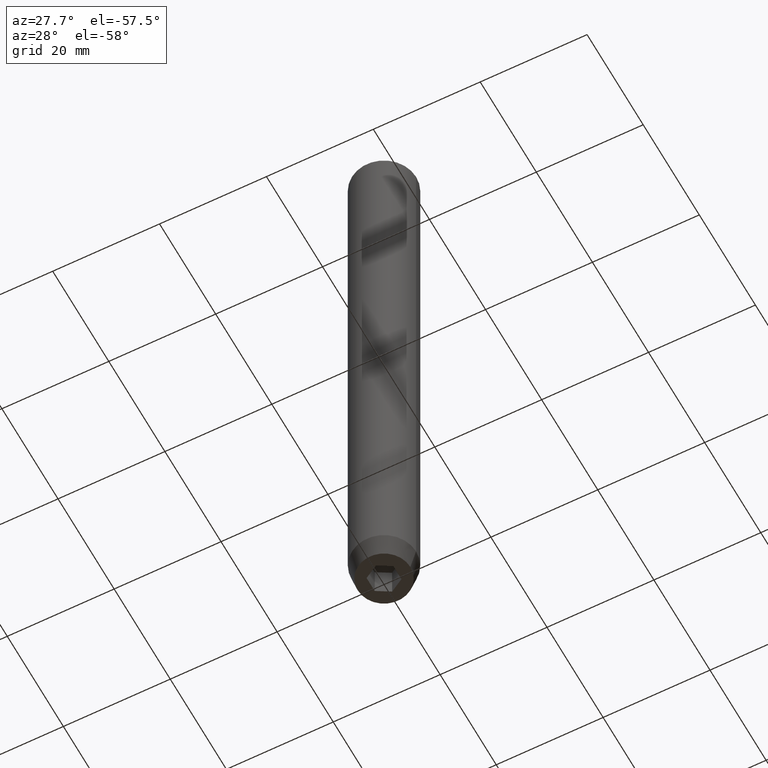
[diagram: clean part render]
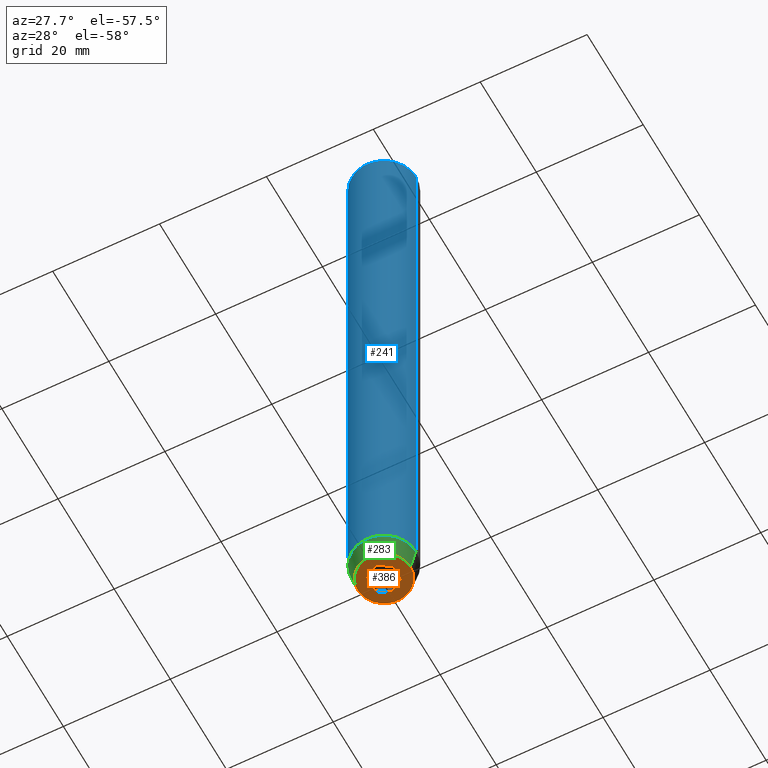
[diagram: same view with three faces highlighted in distinct colors, each labeled with its STEP entity id]
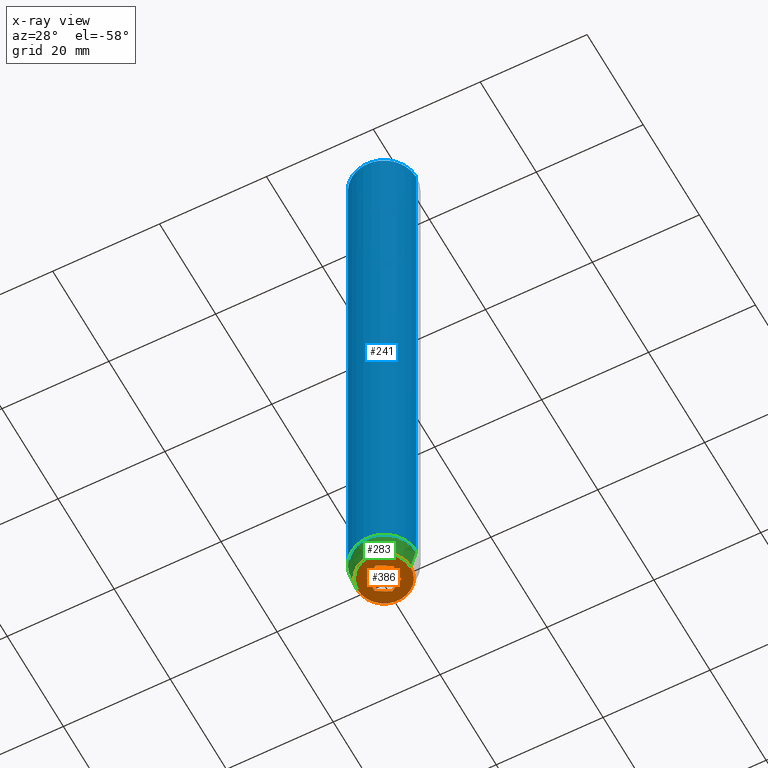
[diagram: x-ray of the same camera — body ghosted, the three highlighted faces saturated]
A machine part, auxiliary view with three faces highlighted in distinct colors.
The next image is the same camera in x-ray (body ghosted, the three faces saturated) — at least one of them is partly hidden behind the body in this view.
Their STEP definitions:

[orange] entity #386 — the highlighted planar face has unit normal (0, 0, -1).
#3 = VECTOR ( 'NONE', #385, 1000.000000000000000 ) ;
#13 = DIRECTION ( 'NONE',  ( -0.8660254037844387076, -0.5000000000000001110, 0.000000000000000000 ) ) ;
#49 = EDGE_LOOP ( 'NONE', ( #256, #211 ) ) ;
#54 = ORIENTED_EDGE ( 'NONE', *, *, #328, .F. ) ;
#83 = VERTEX_POINT ( 'NONE', #470 ) ;
#89 = CARTESIAN_POINT ( 'NONE',  ( -1.249999999999999334, -2.165063509461096825, -120.0000000000000000 ) ) ;
#98 = DIRECTION ( 'NONE',  ( 1.000000000000000000, 0.000000000000000000, 0.000000000000000000 ) ) ;
#100 = VERTEX_POINT ( 'NONE', #309 ) ;
#106 = ORIENTED_EDGE ( 'NONE', *, *, #586, .F. ) ;
#107 = AXIS2_PLACEMENT_3D ( 'NONE', #633, #440, #214 ) ;
#112 = FACE_BOUND ( 'NONE', #295, .T. ) ;
#114 = LINE ( 'NONE', #447, #314 ) ;
#136 = LINE ( 'NONE', #89, #433 ) ;
#145 = FACE_OUTER_BOUND ( 'NONE', #49, .T. ) ;
#174 = AXIS2_PLACEMENT_3D ( 'NONE', #637, #349, #98 ) ;
#184 = CARTESIAN_POINT ( 'NONE',  ( -2.499999999999999556, 1.443375672974064994, -120.0000000000000000 ) ) ;
#190 = CARTESIAN_POINT ( 'NONE',  ( 2.499999999999999556, 0.000000000000000000, -120.0000000000000000 ) ) ;
#192 = CARTESIAN_POINT ( 'NONE',  ( 1.250000000000000222, 2.165063509461097269, -120.0000000000000000 ) ) ;
#202 = DIRECTION ( 'NONE',  ( 0.8660254037844385966, -0.4999999999999999445, 0.000000000000000000 ) ) ;
#205 = CIRCLE ( 'NONE', #107, 4.928203230275505220 ) ;
#211 = ORIENTED_EDGE ( 'NONE', *, *, #348, .F. ) ;
#214 = DIRECTION ( 'NONE',  ( 1.000000000000000000, 0.000000000000000000, 0.000000000000000000 ) ) ;
#227 = LINE ( 'NONE', #190, #3 ) ;
#235 = EDGE_CURVE ( 'NONE', #499, #394, #384, .T. ) ;
#244 = EDGE_CURVE ( 'NONE', #100, #626, #136, .T. ) ;
#249 = CARTESIAN_POINT ( 'NONE',  ( 0.000000000000000000, 4.928203230275505220, -120.0000000000000000 ) ) ;
#254 = CARTESIAN_POINT ( 'NONE',  ( -2.500000000000000000, 7.511572993685795156E-16, -120.0000000000000000 ) ) ;
#256 = ORIENTED_EDGE ( 'NONE', *, *, #308, .F. ) ;
#287 = VECTOR ( 'NONE', #492, 1000.000000000000000 ) ;
#290 = EDGE_CURVE ( 'NONE', #599, #100, #114, .T. ) ;
#295 = EDGE_LOOP ( 'NONE', ( #334, #54, #491, #575, #106, #619 ) ) ;
#302 = LINE ( 'NONE', #254, #287 ) ;
#308 = EDGE_CURVE ( 'NONE', #83, #406, #561, .T. ) ;
#309 = CARTESIAN_POINT ( 'NONE',  ( 6.505213034913026604E-16, -2.886751345948127767, -120.0000000000000000 ) ) ;
#311 = CARTESIAN_POINT ( 'NONE',  ( 0.000000000000000000, 2.886751345948129543, -120.0000000000000000 ) ) ;
#313 = PLANE ( 'NONE',  #366 ) ;
#314 = VECTOR ( 'NONE', #13, 999.9999999999998863 ) ;
#328 = EDGE_CURVE ( 'NONE', #626, #499, #302, .T. ) ;
#334 = ORIENTED_EDGE ( 'NONE', *, *, #235, .F. ) ;
#342 = DIRECTION ( 'NONE',  ( 0.000000000000000000, 0.000000000000000000, -1.000000000000000000 ) ) ;
#347 = VECTOR ( 'NONE', #202, 1000.000000000000114 ) ;
#348 = EDGE_CURVE ( 'NONE', #406, #83, #205, .T. ) ;
#349 = DIRECTION ( 'NONE',  ( -0.000000000000000000, -0.000000000000000000, 1.000000000000000000 ) ) ;
#366 = AXIS2_PLACEMENT_3D ( 'NONE', #249, #342, #606 ) ;
#379 = CARTESIAN_POINT ( 'NONE',  ( -1.250000000000000000, 2.165063509461097269, -120.0000000000000000 ) ) ;
#384 = LINE ( 'NONE', #379, #600 ) ;
#385 = DIRECTION ( 'NONE',  ( 0.000000000000000000, -1.000000000000000000, 0.000000000000000000 ) ) ;
#386 = ADVANCED_FACE ( 'NONE', ( #112, #145 ), #313, .T. ) ;
#390 = LINE ( 'NONE', #192, #347 ) ;
#394 = VERTEX_POINT ( 'NONE', #311 ) ;
#406 = VERTEX_POINT ( 'NONE', #557 ) ;
#433 = VECTOR ( 'NONE', #438, 1000.000000000000114 ) ;
#438 = DIRECTION ( 'NONE',  ( -0.8660254037844387076, 0.4999999999999997780, 0.000000000000000000 ) ) ;
#440 = DIRECTION ( 'NONE',  ( -0.000000000000000000, -0.000000000000000000, 1.000000000000000000 ) ) ;
#447 = CARTESIAN_POINT ( 'NONE',  ( 1.249999999999999778, -2.165063509461096380, -120.0000000000000000 ) ) ;
#470 = CARTESIAN_POINT ( 'NONE',  ( 4.928203230275505220, 0.000000000000000000, -120.0000000000000000 ) ) ;
#491 = ORIENTED_EDGE ( 'NONE', *, *, #244, .F. ) ;
#492 = DIRECTION ( 'NONE',  ( 3.004629197474318063E-16, 1.000000000000000000, 0.000000000000000000 ) ) ;
#499 = VERTEX_POINT ( 'NONE', #184 ) ;
#526 = CARTESIAN_POINT ( 'NONE',  ( 2.499999999999999556, 1.443375672974065216, -120.0000000000000000 ) ) ;
#557 = CARTESIAN_POINT ( 'NONE',  ( -4.928203230275505220, 6.691594553194331608E-16, -120.0000000000000000 ) ) ;
#561 = CIRCLE ( 'NONE', #174, 4.928203230275505220 ) ;
#575 = ORIENTED_EDGE ( 'NONE', *, *, #290, .F. ) ;
#581 = DIRECTION ( 'NONE',  ( 0.8660254037844385966, 0.4999999999999998890, 0.000000000000000000 ) ) ;
#582 = CARTESIAN_POINT ( 'NONE',  ( 2.499999999999999556, -1.443375672974064550, -120.0000000000000000 ) ) ;
#586 = EDGE_CURVE ( 'NONE', #595, #599, #227, .T. ) ;
#595 = VERTEX_POINT ( 'NONE', #526 ) ;
#599 = VERTEX_POINT ( 'NONE', #582 ) ;
#600 = VECTOR ( 'NONE', #581, 1000.000000000000227 ) ;
#606 = DIRECTION ( 'NONE',  ( -1.000000000000000000, 0.000000000000000000, -0.000000000000000000 ) ) ;
#619 = ORIENTED_EDGE ( 'NONE', *, *, #639, .F. ) ;
#626 = VERTEX_POINT ( 'NONE', #630 ) ;
#630 = CARTESIAN_POINT ( 'NONE',  ( -2.500000000000000444, -1.443375672974064106, -120.0000000000000000 ) ) ;
#633 = CARTESIAN_POINT ( 'NONE',  ( 0.000000000000000000, 0.000000000000000000, -120.0000000000000000 ) ) ;
#637 = CARTESIAN_POINT ( 'NONE',  ( 0.000000000000000000, 0.000000000000000000, -120.0000000000000000 ) ) ;
#639 = EDGE_CURVE ( 'NONE', #394, #595, #390, .T. ) ;

[blue] entity #241 — the highlighted cylindrical surface (edge-blend (fillet) strip) has radius 6 mm, axis along (-0, -0, 1).
#22 = CARTESIAN_POINT ( 'NONE',  ( 6.000000000000000000, 0.000000000000000000, -115.9999999999999858 ) ) ;
#25 = EDGE_CURVE ( 'NONE', #341, #99, #117, .T. ) ;
#31 = AXIS2_PLACEMENT_3D ( 'NONE', #65, #368, #615 ) ;
#45 = ORIENTED_EDGE ( 'NONE', *, *, #494, .T. ) ;
#47 = DIRECTION ( 'NONE',  ( 1.000000000000000000, 0.000000000000000000, 0.000000000000000000 ) ) ;
#65 = CARTESIAN_POINT ( 'NONE',  ( 0.000000000000000000, 0.000000000000000000, -115.9999999999999858 ) ) ;
#67 = ORIENTED_EDGE ( 'NONE', *, *, #262, .T. ) ;
#77 = DIRECTION ( 'NONE',  ( -0.000000000000000000, -0.000000000000000000, 1.000000000000000000 ) ) ;
#86 = VECTOR ( 'NONE', #466, 1000.000000000000000 ) ;
#99 = VERTEX_POINT ( 'NONE', #22 ) ;
#117 = CIRCLE ( 'NONE', #31, 6.000000000000000000 ) ;
#149 = CARTESIAN_POINT ( 'NONE',  ( 0.000000000000000000, 0.000000000000000000, -0.4999999999999752975 ) ) ;
#155 = VERTEX_POINT ( 'NONE', #329 ) ;
#182 = DIRECTION ( 'NONE',  ( 1.000000000000000000, 0.000000000000000000, 0.000000000000000000 ) ) ;
#196 = CARTESIAN_POINT ( 'NONE',  ( -6.000000000000000000, 7.347880794884119736E-16, -115.9999999999999858 ) ) ;
#207 = ORIENTED_EDGE ( 'NONE', *, *, #487, .F. ) ;
#219 = EDGE_LOOP ( 'NONE', ( #207, #260, #45, #67 ) ) ;
#224 = DIRECTION ( 'NONE',  ( -0.000000000000000000, -0.000000000000000000, 1.000000000000000000 ) ) ;
#241 = ADVANCED_FACE ( 'NONE', ( #532 ), #522, .T. ) ;
#260 = ORIENTED_EDGE ( 'NONE', *, *, #25, .T. ) ;
#262 = EDGE_CURVE ( 'NONE', #377, #155, #408, .T. ) ;
#276 = CARTESIAN_POINT ( 'NONE',  ( 6.000000000000000000, 0.000000000000000000, 0.000000000000000000 ) ) ;
#282 = CARTESIAN_POINT ( 'NONE',  ( 0.000000000000000000, 0.000000000000000000, 0.000000000000000000 ) ) ;
#299 = DIRECTION ( 'NONE',  ( 0.000000000000000000, 0.000000000000000000, -1.000000000000000000 ) ) ;
#326 = LINE ( 'NONE', #517, #357 ) ;
#329 = CARTESIAN_POINT ( 'NONE',  ( -6.000000000000000000, 7.347880794884119736E-16, -0.4999999999999752975 ) ) ;
#341 = VERTEX_POINT ( 'NONE', #196 ) ;
#357 = VECTOR ( 'NONE', #224, 1000.000000000000000 ) ;
#368 = DIRECTION ( 'NONE',  ( -0.000000000000000000, -0.000000000000000000, 1.000000000000000000 ) ) ;
#377 = VERTEX_POINT ( 'NONE', #401 ) ;
#400 = AXIS2_PLACEMENT_3D ( 'NONE', #149, #299, #47 ) ;
#401 = CARTESIAN_POINT ( 'NONE',  ( 6.000000000000000000, 0.000000000000000000, -0.4999999999999752975 ) ) ;
#408 = CIRCLE ( 'NONE', #400, 6.000000000000000000 ) ;
#430 = LINE ( 'NONE', #276, #86 ) ;
#466 = DIRECTION ( 'NONE',  ( -0.000000000000000000, -0.000000000000000000, 1.000000000000000000 ) ) ;
#487 = EDGE_CURVE ( 'NONE', #341, #155, #326, .T. ) ;
#490 = AXIS2_PLACEMENT_3D ( 'NONE', #282, #77, #182 ) ;
#494 = EDGE_CURVE ( 'NONE', #99, #377, #430, .T. ) ;
#517 = CARTESIAN_POINT ( 'NONE',  ( -6.000000000000000000, 7.347880794884119736E-16, 0.000000000000000000 ) ) ;
#522 = CYLINDRICAL_SURFACE ( 'NONE', #490, 6.000000000000000000 ) ;
#532 = FACE_OUTER_BOUND ( 'NONE', #219, .T. ) ;
#615 = DIRECTION ( 'NONE',  ( 1.000000000000000000, 0.000000000000000000, 0.000000000000000000 ) ) ;

[green] entity #283 — the highlighted conical surface has half-angle 15 deg.
#22 = CARTESIAN_POINT ( 'NONE',  ( 6.000000000000000000, 0.000000000000000000, -115.9999999999999858 ) ) ;
#23 = ORIENTED_EDGE ( 'NONE', *, *, #554, .T. ) ;
#25 = EDGE_CURVE ( 'NONE', #341, #99, #117, .T. ) ;
#31 = AXIS2_PLACEMENT_3D ( 'NONE', #65, #368, #615 ) ;
#35 = CARTESIAN_POINT ( 'NONE',  ( -6.000000000000000000, 7.347880794884119736E-16, -115.9999999999999858 ) ) ;
#39 = DIRECTION ( 'NONE',  ( -0.2588190451025214611, 3.169619151431773569E-17, 0.9659258262890680902 ) ) ;
#65 = CARTESIAN_POINT ( 'NONE',  ( 0.000000000000000000, 0.000000000000000000, -115.9999999999999858 ) ) ;
#83 = VERTEX_POINT ( 'NONE', #470 ) ;
#97 = VECTOR ( 'NONE', #218, 1000.000000000000000 ) ;
#99 = VERTEX_POINT ( 'NONE', #22 ) ;
#103 = ORIENTED_EDGE ( 'NONE', *, *, #146, .F. ) ;
#107 = AXIS2_PLACEMENT_3D ( 'NONE', #633, #440, #214 ) ;
#117 = CIRCLE ( 'NONE', #31, 6.000000000000000000 ) ;
#128 = EDGE_LOOP ( 'NONE', ( #103, #531, #23, #173 ) ) ;
#146 = EDGE_CURVE ( 'NONE', #406, #341, #382, .T. ) ;
#173 = ORIENTED_EDGE ( 'NONE', *, *, #25, .F. ) ;
#178 = CARTESIAN_POINT ( 'NONE',  ( 6.000000000000000000, 0.000000000000000000, -115.9999999999999858 ) ) ;
#196 = CARTESIAN_POINT ( 'NONE',  ( -6.000000000000000000, 7.347880794884119736E-16, -115.9999999999999858 ) ) ;
#205 = CIRCLE ( 'NONE', #107, 4.928203230275505220 ) ;
#214 = DIRECTION ( 'NONE',  ( 1.000000000000000000, 0.000000000000000000, 0.000000000000000000 ) ) ;
#218 = DIRECTION ( 'NONE',  ( 0.2588190451025214611, 0.000000000000000000, 0.9659258262890680902 ) ) ;
#252 = FACE_OUTER_BOUND ( 'NONE', #128, .T. ) ;
#264 = DIRECTION ( 'NONE',  ( 1.000000000000000000, 0.000000000000000000, 0.000000000000000000 ) ) ;
#283 = ADVANCED_FACE ( 'NONE', ( #252 ), #323, .T. ) ;
#286 = VECTOR ( 'NONE', #39, 1000.000000000000000 ) ;
#294 = CARTESIAN_POINT ( 'NONE',  ( 0.000000000000000000, 0.000000000000000000, -115.9999999999999858 ) ) ;
#298 = AXIS2_PLACEMENT_3D ( 'NONE', #294, #509, #264 ) ;
#316 = LINE ( 'NONE', #178, #97 ) ;
#323 = CONICAL_SURFACE ( 'NONE', #298, 6.000000000000000000, 0.2617993877991501850 ) ;
#341 = VERTEX_POINT ( 'NONE', #196 ) ;
#348 = EDGE_CURVE ( 'NONE', #406, #83, #205, .T. ) ;
#368 = DIRECTION ( 'NONE',  ( -0.000000000000000000, -0.000000000000000000, 1.000000000000000000 ) ) ;
#382 = LINE ( 'NONE', #35, #286 ) ;
#406 = VERTEX_POINT ( 'NONE', #557 ) ;
#440 = DIRECTION ( 'NONE',  ( -0.000000000000000000, -0.000000000000000000, 1.000000000000000000 ) ) ;
#470 = CARTESIAN_POINT ( 'NONE',  ( 4.928203230275505220, 0.000000000000000000, -120.0000000000000000 ) ) ;
#509 = DIRECTION ( 'NONE',  ( -0.000000000000000000, -0.000000000000000000, 1.000000000000000000 ) ) ;
#531 = ORIENTED_EDGE ( 'NONE', *, *, #348, .T. ) ;
#554 = EDGE_CURVE ( 'NONE', #83, #99, #316, .T. ) ;
#557 = CARTESIAN_POINT ( 'NONE',  ( -4.928203230275505220, 6.691594553194331608E-16, -120.0000000000000000 ) ) ;
#615 = DIRECTION ( 'NONE',  ( 1.000000000000000000, 0.000000000000000000, 0.000000000000000000 ) ) ;
#633 = CARTESIAN_POINT ( 'NONE',  ( 0.000000000000000000, 0.000000000000000000, -120.0000000000000000 ) ) ;